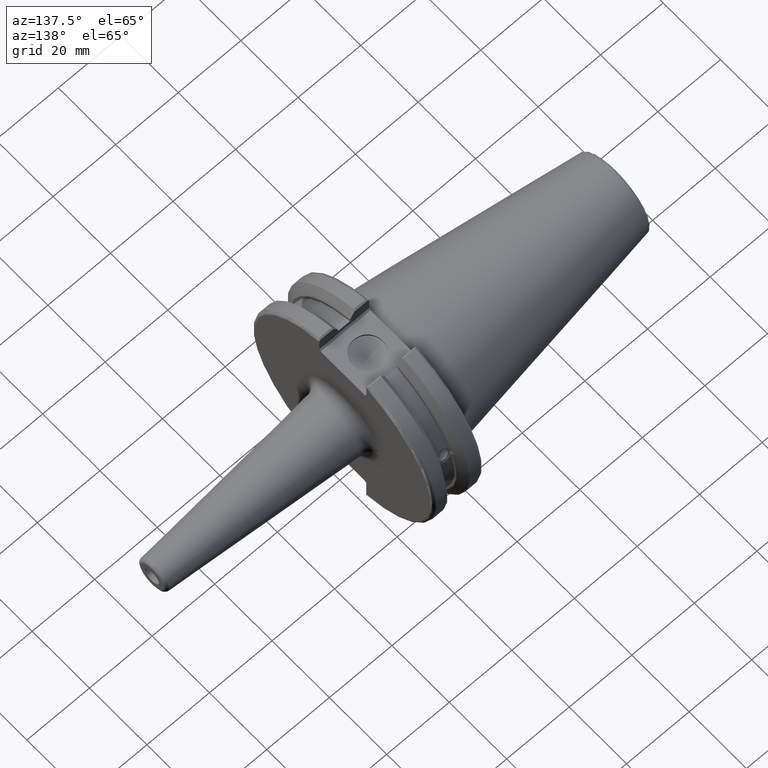
[diagram: clean part render]
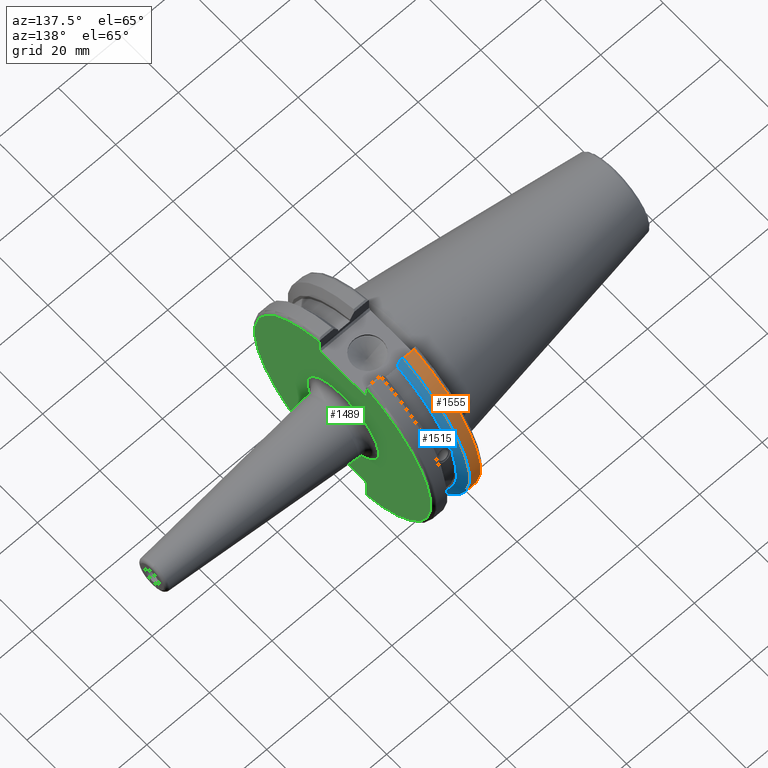
[diagram: same view with three faces highlighted in distinct colors, each labeled with its STEP entity id]
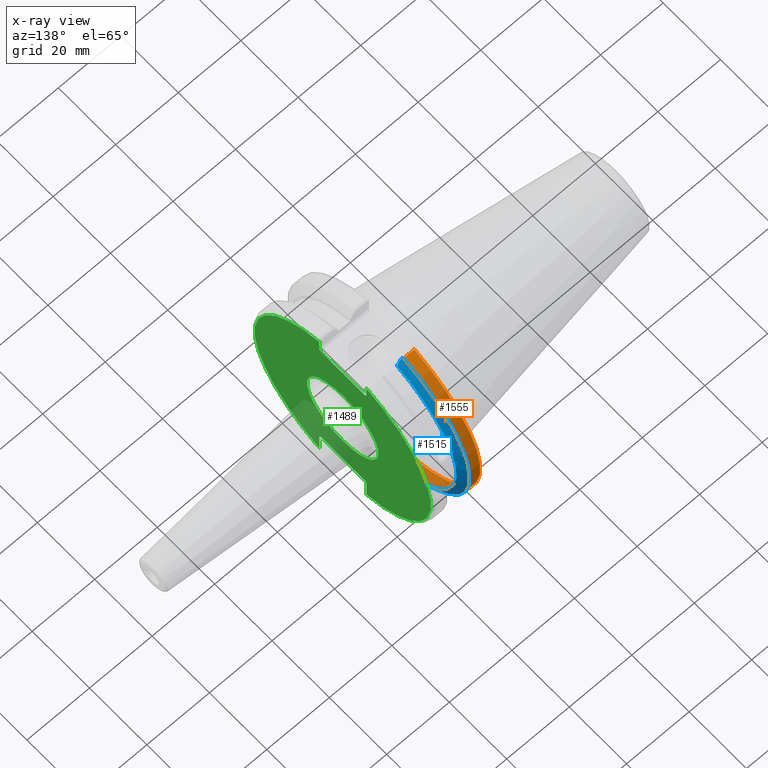
[diagram: x-ray of the same camera — body ghosted, the three highlighted faces saturated]
A machine part, auxiliary view with three faces highlighted in distinct colors.
The next image is the same camera in x-ray (body ghosted, the three faces saturated) — at least one of them is partly hidden behind the body in this view.
Their STEP definitions:

[orange] entity #1555 — the highlighted cylindrical surface (partial cylindrical patch) has radius 31.75 mm, axis along (1, 0, 0).
#103=CYLINDRICAL_SURFACE('',#1746,31.75);
#232=LINE('',#2913,#328);
#247=LINE('',#2966,#343);
#328=VECTOR('',#2109,10.);
#343=VECTOR('',#2168,10.);
#435=FACE_OUTER_BOUND('',#534,.T.);
#534=EDGE_LOOP('',(#1405,#1406,#1407,#1408));
#587=CIRCLE('',#1678,31.75);
#607=CIRCLE('',#1722,31.75);
#708=VERTEX_POINT('',#2640);
#709=VERTEX_POINT('',#2644);
#760=VERTEX_POINT('',#2887);
#761=VERTEX_POINT('',#2896);
#890=EDGE_CURVE('',#708,#709,#587,.T.);
#967=EDGE_CURVE('',#760,#761,#607,.T.);
#970=EDGE_CURVE('',#761,#708,#232,.T.);
#994=EDGE_CURVE('',#709,#760,#247,.T.);
#1405=ORIENTED_EDGE('',*,*,#967,.F.);
#1406=ORIENTED_EDGE('',*,*,#994,.F.);
#1407=ORIENTED_EDGE('',*,*,#890,.F.);
#1408=ORIENTED_EDGE('',*,*,#970,.F.);
#1555=ADVANCED_FACE('',(#435),#103,.T.);
#1678=AXIS2_PLACEMENT_3D('',#2645,#1983,#1984);
#1722=AXIS2_PLACEMENT_3D('',#2897,#2105,#2106);
#1746=AXIS2_PLACEMENT_3D('',#2967,#2169,#2170);
#1983=DIRECTION('center_axis',(1.,0.,0.));
#1984=DIRECTION('ref_axis',(0.,0.,-1.));
#2105=DIRECTION('center_axis',(-1.,0.,0.));
#2106=DIRECTION('ref_axis',(0.,1.,1.60812264967664E-16));
#2109=DIRECTION('',(1.,0.,0.));
#2168=DIRECTION('',(-1.,0.,0.));
#2169=DIRECTION('center_axis',(1.,0.,0.));
#2170=DIRECTION('ref_axis',(0.,1.,0.));
#2640=CARTESIAN_POINT('',(7.60793323092436,8.67204822802685,-30.5427254764662));
#2644=CARTESIAN_POINT('',(7.60793323092436,8.67204822802685,30.5427254764662));
#2645=CARTESIAN_POINT('Origin',(7.60793323092436,0.,0.));
#2887=CARTESIAN_POINT('',(4.175,8.67204822802685,30.5427254764662));
#2896=CARTESIAN_POINT('',(4.175,8.67204822802685,-30.5427254764662));
#2897=CARTESIAN_POINT('Origin',(4.175,0.,0.));
#2913=CARTESIAN_POINT('',(5.39146661546218,8.67204822802685,-30.5427254764662));
#2966=CARTESIAN_POINT('',(5.39146661546218,8.67204822802685,30.5427254764662));
#2967=CARTESIAN_POINT('Origin',(5.39146661546218,0.,0.));

[blue] entity #1515 — the highlighted conical surface has half-angle 60 deg.
#19=(
BOUNDED_CURVE()
B_SPLINE_CURVE(2,(#2637,#2638,#2639),.UNSPECIFIED.,.F.,.F.)
B_SPLINE_CURVE_WITH_KNOTS((3,3),(0.,0.276549142796136),.UNSPECIFIED.)
CURVE()
GEOMETRIC_REPRESENTATION_ITEM()
RATIONAL_B_SPLINE_CURVE((1.,1.00095203903316,1.00031614444813))
REPRESENTATION_ITEM('')
);
#20=(
BOUNDED_CURVE()
B_SPLINE_CURVE(2,(#2641,#2642,#2643),.UNSPECIFIED.,.F.,.F.)
B_SPLINE_CURVE_WITH_KNOTS((3,3),(0.,0.0639048713676127),.UNSPECIFIED.)
CURVE()
GEOMETRIC_REPRESENTATION_ITEM()
RATIONAL_B_SPLINE_CURVE((1.,1.00028444218281,1.00047644010571))
REPRESENTATION_ITEM('')
);
#21=(
BOUNDED_CURVE()
B_SPLINE_CURVE(2,(#2647,#2648,#2649),.UNSPECIFIED.,.F.,.F.)
B_SPLINE_CURVE_WITH_KNOTS((3,3),(0.329353533631191,0.393258405001024),
 .UNSPECIFIED.)
CURVE()
GEOMETRIC_REPRESENTATION_ITEM()
RATIONAL_B_SPLINE_CURVE((1.00047644010564,1.00028444218277,1.))
REPRESENTATION_ITEM('')
);
#22=(
BOUNDED_CURVE()
B_SPLINE_CURVE(2,(#2651,#2652,#2653),.UNSPECIFIED.,.F.,.F.)
B_SPLINE_CURVE_WITH_KNOTS((3,3),(0.0550586467391943,0.33160778953585),
 .UNSPECIFIED.)
CURVE()
GEOMETRIC_REPRESENTATION_ITEM()
RATIONAL_B_SPLINE_CURVE((1.00031614445155,1.00095203904346,1.))
REPRESENTATION_ITEM('')
);
#60=B_SPLINE_CURVE_WITH_KNOTS('',3,(#2590,#2591,#2592,#2593,#2594,#2595,
#2596,#2597,#2598,#2599,#2600,#2601,#2602,#2603),.UNSPECIFIED.,.F.,.F.,
(4,2,2,2,2,2,4),(0.451995700189024,0.464547828547661,0.504528771685166,
0.544509714822672,0.584490657960177,0.624471601097683,0.637023729456319),
 .UNSPECIFIED.);
#355=CONICAL_SURFACE('',#1676,30.3546886482472,1.0471975511966);
#395=FACE_OUTER_BOUND('',#489,.T.);
#489=EDGE_LOOP('',(#1189,#1190,#1191,#1192,#1193,#1194,#1195,#1196));
#586=CIRCLE('',#1677,28.9593772964944);
#587=CIRCLE('',#1678,31.75);
#588=CIRCLE('',#1679,28.9593772964944);
#701=VERTEX_POINT('',#2587);
#702=VERTEX_POINT('',#2589);
#706=VERTEX_POINT('',#2634);
#707=VERTEX_POINT('',#2636);
#708=VERTEX_POINT('',#2640);
#709=VERTEX_POINT('',#2644);
#710=VERTEX_POINT('',#2646);
#711=VERTEX_POINT('',#2650);
#882=EDGE_CURVE('',#702,#701,#60,.T.);
#887=EDGE_CURVE('',#706,#701,#586,.T.);
#888=EDGE_CURVE('',#706,#707,#19,.T.);
#889=EDGE_CURVE('',#708,#707,#20,.T.);
#890=EDGE_CURVE('',#708,#709,#587,.T.);
#891=EDGE_CURVE('',#710,#709,#21,.T.);
#892=EDGE_CURVE('',#710,#711,#22,.T.);
#893=EDGE_CURVE('',#702,#711,#588,.T.);
#1189=ORIENTED_EDGE('',*,*,#882,.T.);
#1190=ORIENTED_EDGE('',*,*,#887,.F.);
#1191=ORIENTED_EDGE('',*,*,#888,.T.);
#1192=ORIENTED_EDGE('',*,*,#889,.F.);
#1193=ORIENTED_EDGE('',*,*,#890,.T.);
#1194=ORIENTED_EDGE('',*,*,#891,.F.);
#1195=ORIENTED_EDGE('',*,*,#892,.T.);
#1196=ORIENTED_EDGE('',*,*,#893,.F.);
#1515=ADVANCED_FACE('',(#395),#355,.T.);
#1676=AXIS2_PLACEMENT_3D('',#2633,#1979,#1980);
#1677=AXIS2_PLACEMENT_3D('',#2635,#1981,#1982);
#1678=AXIS2_PLACEMENT_3D('',#2645,#1983,#1984);
#1679=AXIS2_PLACEMENT_3D('',#2654,#1985,#1986);
#1979=DIRECTION('center_axis',(-1.,0.,0.));
#1980=DIRECTION('ref_axis',(0.,1.,0.));
#1981=DIRECTION('center_axis',(1.,0.,0.));
#1982=DIRECTION('ref_axis',(0.,0.,-1.));
#1983=DIRECTION('center_axis',(1.,0.,0.));
#1984=DIRECTION('ref_axis',(0.,0.,-1.));
#1985=DIRECTION('center_axis',(1.,0.,0.));
#1986=DIRECTION('ref_axis',(0.,0.,-1.));
#2587=CARTESIAN_POINT('',(9.2191,27.4956274489925,9.09043478536247));
#2589=CARTESIAN_POINT('',(9.2191,26.9060914640648,10.7101715919071));
#2590=CARTESIAN_POINT('Ctrl Pts',(9.2191,26.9060914640648,10.7101715919071));
#2591=CARTESIAN_POINT('Ctrl Pts',(9.20497959280038,26.9406927482839,10.6893765730703));
#2592=CARTESIAN_POINT('Ctrl Pts',(9.19150701821434,26.9744191989197,10.6676007180674));
#2593=CARTESIAN_POINT('Ctrl Pts',(9.13811855884095,27.1113422433188,10.5723885976054));
#2594=CARTESIAN_POINT('Ctrl Pts',(9.09998029158246,27.2180531796526,10.4801333026531));
#2595=CARTESIAN_POINT('Ctrl Pts',(9.04778935539424,27.3968610665578,10.2639559818059));
#2596=CARTESIAN_POINT('Ctrl Pts',(9.0341,27.4684373304961,10.139516340139));
#2597=CARTESIAN_POINT('Ctrl Pts',(9.0341,27.559599249844,9.88905102521651));
#2598=CARTESIAN_POINT('Ctrl Pts',(9.04778935539424,27.5847569104122,9.74771639360672));
#2599=CARTESIAN_POINT('Ctrl Pts',(9.09998029158246,27.5867382255984,9.46717946402648));
#2600=CARTESIAN_POINT('Ctrl Pts',(9.13811855884095,27.5642934663232,9.32791534028656));
#2601=CARTESIAN_POINT('Ctrl Pts',(9.19150701821434,27.5206055003512,9.16696618806878));
#2602=CARTESIAN_POINT('Ctrl Pts',(9.20497959280038,27.5087667900418,9.12860597076219));
#2603=CARTESIAN_POINT('Ctrl Pts',(9.21909999999999,27.4956274489925,9.09043478536247));
#2633=CARTESIAN_POINT('Origin',(8.41351661546218,0.,0.));
#2634=CARTESIAN_POINT('',(9.2191,8.19,-27.7771386827498));
#2635=CARTESIAN_POINT('Origin',(9.2191,0.,0.));
#2636=CARTESIAN_POINT('',(7.88668530351257,8.19,-30.1755016258903));
#2637=CARTESIAN_POINT('Ctrl Pts',(9.2191,8.19,-27.7771386827498));
#2638=CARTESIAN_POINT('Ctrl Pts',(8.58046356152393,8.19,-28.9303689539705));
#2639=CARTESIAN_POINT('Ctrl Pts',(7.88668530351257,8.19,-30.1755016258903));
#2640=CARTESIAN_POINT('',(7.60793323092436,8.67204822802685,-30.5427254764662));
#2641=CARTESIAN_POINT('Ctrl Pts',(7.60793323092436,8.67204822802686,-30.5427254764662));
#2642=CARTESIAN_POINT('Ctrl Pts',(7.74899148121627,8.42917748262647,-30.357706789263));
#2643=CARTESIAN_POINT('Ctrl Pts',(7.88668530351257,8.19,-30.1755016258903));
#2644=CARTESIAN_POINT('',(7.60793323092436,8.67204822802685,30.5427254764662));
#2645=CARTESIAN_POINT('Origin',(7.60793323092436,0.,0.));
#2646=CARTESIAN_POINT('',(7.88668530351256,8.19,30.1755016258903));
#2647=CARTESIAN_POINT('Ctrl Pts',(7.88668530351256,8.19,30.1755016258903));
#2648=CARTESIAN_POINT('Ctrl Pts',(7.74899148121158,8.42917748263469,30.3577067892692));
#2649=CARTESIAN_POINT('Ctrl Pts',(7.60793323092436,8.67204822802686,30.5427254764662));
#2650=CARTESIAN_POINT('',(9.2191,8.19,27.7771386827498));
#2651=CARTESIAN_POINT('Ctrl Pts',(7.88668530351256,8.19,30.1755016258903));
#2652=CARTESIAN_POINT('Ctrl Pts',(8.58046356152345,8.19,28.9303689539713));
#2653=CARTESIAN_POINT('Ctrl Pts',(9.2191,8.19,27.7771386827498));
#2654=CARTESIAN_POINT('Origin',(9.2191,0.,0.));

[green] entity #1489 — the highlighted planar face has unit normal (1, 0, 0).
#109=FACE_BOUND('',#458,.T.);
#123=PLANE('',#1609);
#159=LINE('',#2257,#255);
#160=LINE('',#2259,#256);
#161=LINE('',#2261,#257);
#162=LINE('',#2263,#258);
#163=LINE('',#2265,#259);
#164=LINE('',#2269,#260);
#165=LINE('',#2271,#261);
#166=LINE('',#2273,#262);
#167=LINE('',#2275,#263);
#168=LINE('',#2276,#264);
#255=VECTOR('',#1810,10.);
#256=VECTOR('',#1811,10.);
#257=VECTOR('',#1812,10.);
#258=VECTOR('',#1813,10.);
#259=VECTOR('',#1814,10.);
#260=VECTOR('',#1817,10.);
#261=VECTOR('',#1818,10.);
#262=VECTOR('',#1819,10.);
#263=VECTOR('',#1820,10.);
#264=VECTOR('',#1821,10.);
#369=FACE_OUTER_BOUND('',#457,.T.);
#457=EDGE_LOOP('',(#1032,#1033,#1034,#1035,#1036,#1037,#1038,#1039,#1040,
#1041,#1042,#1043));
#458=EDGE_LOOP('',(#1044));
#560=CIRCLE('',#1606,12.5);
#562=CIRCLE('',#1610,30.75);
#563=CIRCLE('',#1611,30.75);
#632=VERTEX_POINT('',#2246);
#633=VERTEX_POINT('',#2253);
#634=VERTEX_POINT('',#2254);
#635=VERTEX_POINT('',#2256);
#636=VERTEX_POINT('',#2258);
#637=VERTEX_POINT('',#2260);
#638=VERTEX_POINT('',#2262);
#639=VERTEX_POINT('',#2264);
#640=VERTEX_POINT('',#2266);
#641=VERTEX_POINT('',#2268);
#642=VERTEX_POINT('',#2270);
#643=VERTEX_POINT('',#2272);
#644=VERTEX_POINT('',#2274);
#786=EDGE_CURVE('',#632,#632,#560,.T.);
#789=EDGE_CURVE('',#633,#634,#562,.T.);
#790=EDGE_CURVE('',#633,#635,#159,.T.);
#791=EDGE_CURVE('',#636,#635,#160,.T.);
#792=EDGE_CURVE('',#636,#637,#161,.T.);
#793=EDGE_CURVE('',#638,#637,#162,.T.);
#794=EDGE_CURVE('',#638,#639,#163,.T.);
#795=EDGE_CURVE('',#640,#639,#563,.T.);
#796=EDGE_CURVE('',#640,#641,#164,.T.);
#797=EDGE_CURVE('',#642,#641,#165,.T.);
#798=EDGE_CURVE('',#642,#643,#166,.T.);
#799=EDGE_CURVE('',#644,#643,#167,.T.);
#800=EDGE_CURVE('',#644,#634,#168,.T.);
#1032=ORIENTED_EDGE('',*,*,#789,.F.);
#1033=ORIENTED_EDGE('',*,*,#790,.T.);
#1034=ORIENTED_EDGE('',*,*,#791,.F.);
#1035=ORIENTED_EDGE('',*,*,#792,.T.);
#1036=ORIENTED_EDGE('',*,*,#793,.F.);
#1037=ORIENTED_EDGE('',*,*,#794,.T.);
#1038=ORIENTED_EDGE('',*,*,#795,.F.);
#1039=ORIENTED_EDGE('',*,*,#796,.T.);
#1040=ORIENTED_EDGE('',*,*,#797,.F.);
#1041=ORIENTED_EDGE('',*,*,#798,.T.);
#1042=ORIENTED_EDGE('',*,*,#799,.F.);
#1043=ORIENTED_EDGE('',*,*,#800,.T.);
#1044=ORIENTED_EDGE('',*,*,#786,.F.);
#1489=ADVANCED_FACE('',(#369,#109),#123,.T.);
#1606=AXIS2_PLACEMENT_3D('',#2248,#1799,#1800);
#1609=AXIS2_PLACEMENT_3D('',#2252,#1806,#1807);
#1610=AXIS2_PLACEMENT_3D('',#2255,#1808,#1809);
#1611=AXIS2_PLACEMENT_3D('',#2267,#1815,#1816);
#1799=DIRECTION('center_axis',(1.,0.,0.));
#1800=DIRECTION('ref_axis',(0.,-1.,-1.22464679914735E-16));
#1806=DIRECTION('center_axis',(1.,0.,0.));
#1807=DIRECTION('ref_axis',(0.,0.,-1.));
#1808=DIRECTION('center_axis',(-1.,0.,0.));
#1809=DIRECTION('ref_axis',(0.,1.,-6.12323399573677E-17));
#1810=DIRECTION('',(0.,0.,-1.));
#1811=DIRECTION('',(0.,0.707106781186549,0.707106781186546));
#1812=DIRECTION('',(0.,-1.,0.));
#1813=DIRECTION('',(0.,0.70710678118655,-0.707106781186545));
#1814=DIRECTION('',(0.,0.,1.));
#1815=DIRECTION('center_axis',(-1.,0.,0.));
#1816=DIRECTION('ref_axis',(0.,-1.,1.60812264967664E-16));
#1817=DIRECTION('',(0.,0.,1.));
#1818=DIRECTION('',(0.,-0.707106781186549,-0.707106781186546));
#1819=DIRECTION('',(0.,1.,0.));
#1820=DIRECTION('',(0.,-0.707106781186549,0.707106781186546));
#1821=DIRECTION('',(0.,0.,-1.));
#2246=CARTESIAN_POINT('',(19.05,-1.53080849893419E-15,-12.5));
#2248=CARTESIAN_POINT('Origin',(19.05,0.,0.));
#2252=CARTESIAN_POINT('Origin',(19.05,0.,0.));
#2253=CARTESIAN_POINT('',(19.05,8.19,29.6392712461019));
#2254=CARTESIAN_POINT('',(19.05,8.19,-29.6392712461019));
#2255=CARTESIAN_POINT('Origin',(19.05,0.,0.));
#2256=CARTESIAN_POINT('',(19.05,8.19,25.5));
#2257=CARTESIAN_POINT('',(19.05,8.19,12.5));
#2258=CARTESIAN_POINT('',(19.05,7.69,25.));
#2259=CARTESIAN_POINT('',(19.05,-0.35750000000001,16.9525));
#2260=CARTESIAN_POINT('',(19.05,-7.69,25.));
#2261=CARTESIAN_POINT('',(19.05,0.,25.));
#2262=CARTESIAN_POINT('',(19.05,-8.19,25.5));
#2263=CARTESIAN_POINT('',(19.05,0.357500000000014,16.9525));
#2264=CARTESIAN_POINT('',(19.05,-8.19,29.6392712461019));
#2265=CARTESIAN_POINT('',(19.05,-8.19,12.5));
#2266=CARTESIAN_POINT('',(19.05,-8.19,-29.6392712461019));
#2267=CARTESIAN_POINT('Origin',(19.05,0.,0.));
#2268=CARTESIAN_POINT('',(19.05,-8.19,-23.1));
#2269=CARTESIAN_POINT('',(19.05,-8.19,-11.3));
#2270=CARTESIAN_POINT('',(19.05,-7.69,-22.6));
#2271=CARTESIAN_POINT('',(19.05,-0.242499999999991,-15.1525));
#2272=CARTESIAN_POINT('',(19.05,7.69,-22.6));
#2273=CARTESIAN_POINT('',(19.05,-2.77555756156289E-16,-22.6));
#2274=CARTESIAN_POINT('',(19.05,8.19,-23.1));
#2275=CARTESIAN_POINT('',(19.05,0.242499999999989,-15.1525));
#2276=CARTESIAN_POINT('',(19.05,8.19,-11.3));